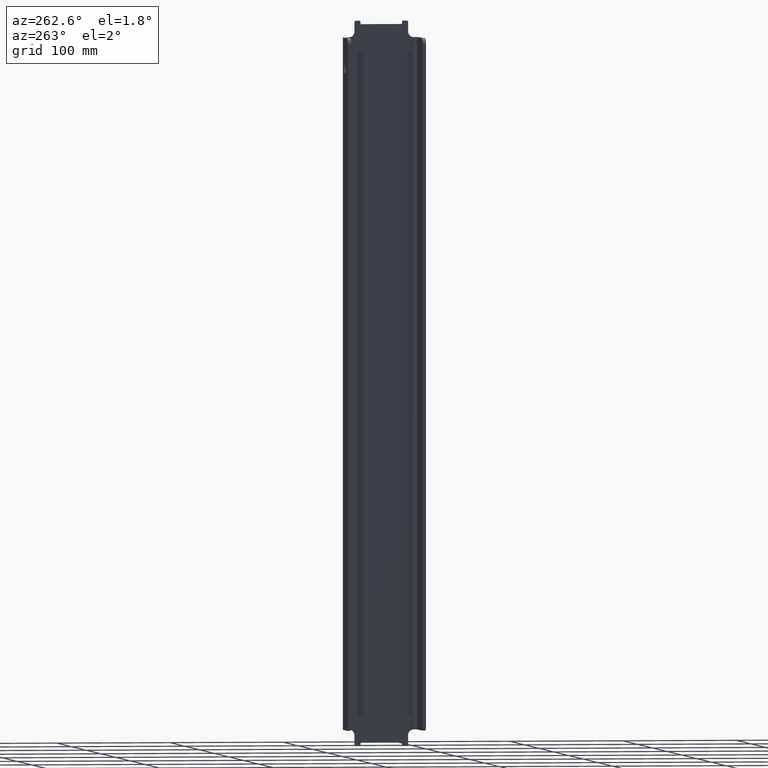
[diagram: clean part render]
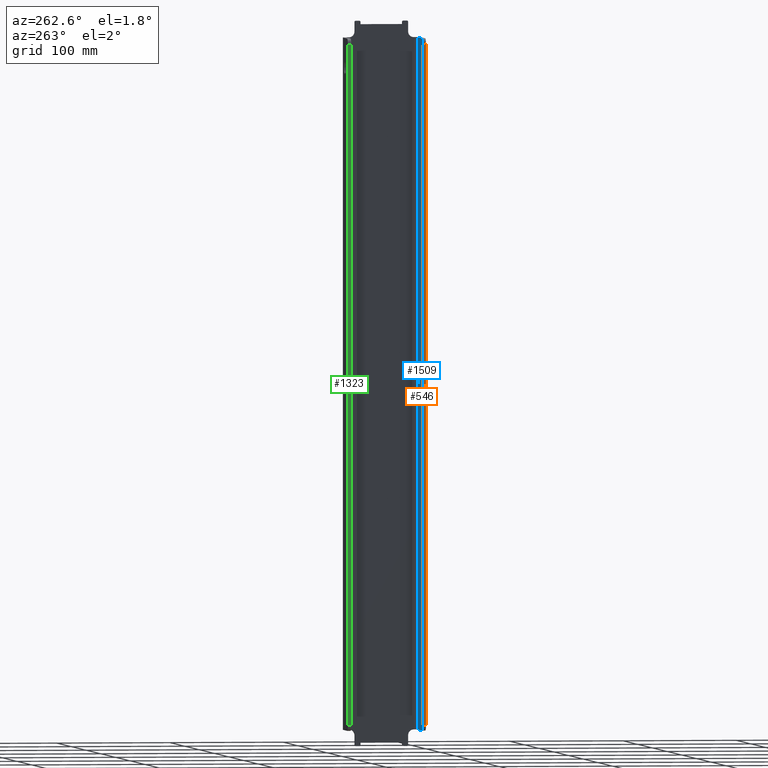
[diagram: same view with three faces highlighted in distinct colors, each labeled with its STEP entity id]
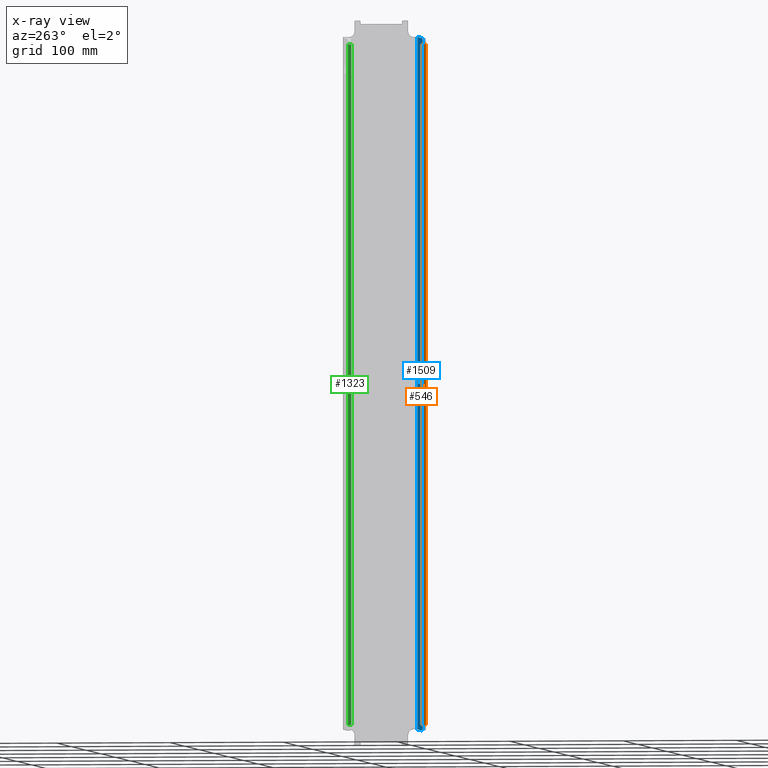
[diagram: x-ray of the same camera — body ghosted, the three highlighted faces saturated]
A machine part, auxiliary view with three faces highlighted in distinct colors.
The next image is the same camera in x-ray (body ghosted, the three faces saturated) — at least one of them is partly hidden behind the body in this view.
Their STEP definitions:

[orange] entity #546 — the highlighted planar face has unit normal (-1, 0, 0).
#24 = EDGE_CURVE ( 'NONE', #1079, #1404, #947, .T. ) ;
#129 = VECTOR ( 'NONE', #791, 1000.000000000000000 ) ;
#152 = ORIENTED_EDGE ( 'NONE', *, *, #1211, .T. ) ;
#165 = CARTESIAN_POINT ( 'NONE',  ( -560.0000000000002274, -1163.305262667904117, 644.5000000000000000 ) ) ;
#220 = EDGE_LOOP ( 'NONE', ( #429, #1457, #152, #360 ) ) ;
#287 = CARTESIAN_POINT ( 'NONE',  ( -560.0000000000002274, -1163.305262667904117, 1340.255877526362156 ) ) ;
#319 = DIRECTION ( 'NONE',  ( -0.000000000000000000, -0.000000000000000000, -1.000000000000000000 ) ) ;
#360 = ORIENTED_EDGE ( 'NONE', *, *, #493, .T. ) ;
#429 = ORIENTED_EDGE ( 'NONE', *, *, #24, .F. ) ;
#437 = CARTESIAN_POINT ( 'NONE',  ( -560.0000000000002274, -1163.305262667904117, 1340.255877526362156 ) ) ;
#454 = DIRECTION ( 'NONE',  ( -0.000000000000000000, -0.000000000000000000, -1.000000000000000000 ) ) ;
#475 = VERTEX_POINT ( 'NONE', #917 ) ;
#493 = EDGE_CURVE ( 'NONE', #475, #1404, #934, .T. ) ;
#495 = CARTESIAN_POINT ( 'NONE',  ( -560.0000000000002274, -1166.305262667904117, 644.5000000000000000 ) ) ;
#533 = DIRECTION ( 'NONE',  ( 0.000000000000000000, 0.000000000000000000, 1.000000000000000000 ) ) ;
#546 = ADVANCED_FACE ( 'NONE', ( #1078 ), #1585, .T. ) ;
#791 = DIRECTION ( 'NONE',  ( 0.000000000000000000, 1.000000000000000000, -0.000000000000000000 ) ) ;
#905 = EDGE_CURVE ( 'NONE', #1192, #1079, #1464, .T. ) ;
#917 = CARTESIAN_POINT ( 'NONE',  ( -560.0000000000002274, -1163.305262667904117, 1241.000000000000455 ) ) ;
#934 = LINE ( 'NONE', #287, #977 ) ;
#943 = DIRECTION ( 'NONE',  ( -1.000000000000000000, 0.000000000000000000, 0.000000000000000000 ) ) ;
#947 = LINE ( 'NONE', #165, #129 ) ;
#955 = DIRECTION ( 'NONE',  ( 0.000000000000000000, 1.000000000000000000, -0.000000000000000000 ) ) ;
#977 = VECTOR ( 'NONE', #319, 1000.000000000000000 ) ;
#1028 = CARTESIAN_POINT ( 'NONE',  ( -560.0000000000002274, -1163.305262667904117, 644.5000000000000000 ) ) ;
#1078 = FACE_OUTER_BOUND ( 'NONE', #220, .T. ) ;
#1079 = VERTEX_POINT ( 'NONE', #495 ) ;
#1092 = VECTOR ( 'NONE', #454, 1000.000000000000000 ) ;
#1118 = CARTESIAN_POINT ( 'NONE',  ( -560.0000000000002274, -1166.305262667904117, 1340.255877526362156 ) ) ;
#1192 = VERTEX_POINT ( 'NONE', #1559 ) ;
#1203 = AXIS2_PLACEMENT_3D ( 'NONE', #437, #943, #533 ) ;
#1211 = EDGE_CURVE ( 'NONE', #1192, #475, #1297, .T. ) ;
#1297 = LINE ( 'NONE', #1436, #1463 ) ;
#1404 = VERTEX_POINT ( 'NONE', #1028 ) ;
#1436 = CARTESIAN_POINT ( 'NONE',  ( -560.0000000000002274, -1163.305262667904117, 1241.000000000000455 ) ) ;
#1457 = ORIENTED_EDGE ( 'NONE', *, *, #905, .F. ) ;
#1463 = VECTOR ( 'NONE', #955, 1000.000000000000000 ) ;
#1464 = LINE ( 'NONE', #1118, #1092 ) ;
#1559 = CARTESIAN_POINT ( 'NONE',  ( -560.0000000000002274, -1166.305262667904117, 1241.000000000000455 ) ) ;
#1585 = PLANE ( 'NONE',  #1203 ) ;

[blue] entity #1509 — the highlighted planar face has unit normal (0, 1, -0).
#17 = EDGE_LOOP ( 'NONE', ( #575, #1051, #1487, #370, #61, #1329 ) ) ;
#61 = ORIENTED_EDGE ( 'NONE', *, *, #1327, .F. ) ;
#110 = CARTESIAN_POINT ( 'NONE',  ( -555.0000000000001137, -1163.305262667904117, 1246.000000000000455 ) ) ;
#142 = VERTEX_POINT ( 'NONE', #110 ) ;
#149 = AXIS2_PLACEMENT_3D ( 'NONE', #1252, #985, #1019 ) ;
#184 = CARTESIAN_POINT ( 'NONE',  ( 1090.972523324353915, -1163.305262667904117, 1246.000000000000455 ) ) ;
#218 = LINE ( 'NONE', #356, #412 ) ;
#287 = CARTESIAN_POINT ( 'NONE',  ( -560.0000000000002274, -1163.305262667904117, 1340.255877526362156 ) ) ;
#305 = PLANE ( 'NONE',  #1054 ) ;
#319 = DIRECTION ( 'NONE',  ( -0.000000000000000000, -0.000000000000000000, -1.000000000000000000 ) ) ;
#330 = CARTESIAN_POINT ( 'NONE',  ( -555.0000000000002274, -1163.305262667904117, 644.5000000000000000 ) ) ;
#336 = VECTOR ( 'NONE', #1331, 1000.000000000000000 ) ;
#347 = CIRCLE ( 'NONE', #373, 5.000000000000004441 ) ;
#356 = CARTESIAN_POINT ( 'NONE',  ( 1090.972523324353915, -1163.305262667904117, 639.5000000000000000 ) ) ;
#370 = ORIENTED_EDGE ( 'NONE', *, *, #915, .F. ) ;
#373 = AXIS2_PLACEMENT_3D ( 'NONE', #330, #693, #1606 ) ;
#390 = VERTEX_POINT ( 'NONE', #893 ) ;
#401 = CARTESIAN_POINT ( 'NONE',  ( -526.0000000000004547, -1163.305262667903889, 1246.000000000000455 ) ) ;
#412 = VECTOR ( 'NONE', #1643, 1000.000000000000000 ) ;
#432 = DIRECTION ( 'NONE',  ( 0.000000000000000000, 1.000000000000000000, -0.000000000000000000 ) ) ;
#475 = VERTEX_POINT ( 'NONE', #917 ) ;
#493 = EDGE_CURVE ( 'NONE', #475, #1404, #934, .T. ) ;
#559 = VECTOR ( 'NONE', #1593, 1000.000000000000000 ) ;
#570 = LINE ( 'NONE', #687, #559 ) ;
#575 = ORIENTED_EDGE ( 'NONE', *, *, #493, .F. ) ;
#687 = CARTESIAN_POINT ( 'NONE',  ( -526.0000000000004547, -1163.305262667904117, 1340.255877526362156 ) ) ;
#689 = LINE ( 'NONE', #184, #336 ) ;
#693 = DIRECTION ( 'NONE',  ( 0.000000000000000000, 1.000000000000000000, -0.000000000000000000 ) ) ;
#698 = VERTEX_POINT ( 'NONE', #1656 ) ;
#816 = CARTESIAN_POINT ( 'NONE',  ( 1090.972523324353915, -1163.305262667904117, 1340.255877526362156 ) ) ;
#882 = EDGE_CURVE ( 'NONE', #390, #1404, #347, .T. ) ;
#893 = CARTESIAN_POINT ( 'NONE',  ( -555.0000000000001137, -1163.305262667904117, 639.5000000000000000 ) ) ;
#915 = EDGE_CURVE ( 'NONE', #698, #1432, #570, .T. ) ;
#917 = CARTESIAN_POINT ( 'NONE',  ( -560.0000000000002274, -1163.305262667904117, 1241.000000000000455 ) ) ;
#934 = LINE ( 'NONE', #287, #977 ) ;
#977 = VECTOR ( 'NONE', #319, 1000.000000000000000 ) ;
#985 = DIRECTION ( 'NONE',  ( 0.000000000000000000, 1.000000000000000000, -0.000000000000000000 ) ) ;
#1019 = DIRECTION ( 'NONE',  ( 0.000000000000000000, 0.000000000000000000, 1.000000000000000000 ) ) ;
#1028 = CARTESIAN_POINT ( 'NONE',  ( -560.0000000000002274, -1163.305262667904117, 644.5000000000000000 ) ) ;
#1051 = ORIENTED_EDGE ( 'NONE', *, *, #1077, .T. ) ;
#1054 = AXIS2_PLACEMENT_3D ( 'NONE', #816, #432, #1586 ) ;
#1077 = EDGE_CURVE ( 'NONE', #475, #142, #1351, .T. ) ;
#1252 = CARTESIAN_POINT ( 'NONE',  ( -555.0000000000002274, -1163.305262667904117, 1241.000000000000455 ) ) ;
#1327 = EDGE_CURVE ( 'NONE', #390, #698, #218, .T. ) ;
#1329 = ORIENTED_EDGE ( 'NONE', *, *, #882, .T. ) ;
#1331 = DIRECTION ( 'NONE',  ( -1.000000000000000000, 0.000000000000000000, 0.000000000000000000 ) ) ;
#1351 = CIRCLE ( 'NONE', #149, 4.999999999999893419 ) ;
#1404 = VERTEX_POINT ( 'NONE', #1028 ) ;
#1432 = VERTEX_POINT ( 'NONE', #401 ) ;
#1450 = FACE_OUTER_BOUND ( 'NONE', #17, .T. ) ;
#1487 = ORIENTED_EDGE ( 'NONE', *, *, #1488, .F. ) ;
#1488 = EDGE_CURVE ( 'NONE', #1432, #142, #689, .T. ) ;
#1509 = ADVANCED_FACE ( 'NONE', ( #1450 ), #305, .T. ) ;
#1586 = DIRECTION ( 'NONE',  ( 0.000000000000000000, 0.000000000000000000, 1.000000000000000000 ) ) ;
#1593 = DIRECTION ( 'NONE',  ( 0.000000000000000000, 0.000000000000000000, 1.000000000000000000 ) ) ;
#1606 = DIRECTION ( 'NONE',  ( 0.000000000000000000, 0.000000000000000000, 1.000000000000000000 ) ) ;
#1643 = DIRECTION ( 'NONE',  ( 1.000000000000000000, -0.000000000000000000, 0.000000000000000000 ) ) ;
#1656 = CARTESIAN_POINT ( 'NONE',  ( -526.0000000000004547, -1163.305262667904117, 639.5000000000000000 ) ) ;

[green] entity #1323 — the highlighted planar face has unit normal (-1, 0, 0).
#12 = DIRECTION ( 'NONE',  ( -0.000000000000000000, -0.000000000000000000, -1.000000000000000000 ) ) ;
#87 = DIRECTION ( 'NONE',  ( -1.000000000000000000, 5.551115123125794535E-15, 0.000000000000000000 ) ) ;
#89 = EDGE_LOOP ( 'NONE', ( #1070, #1324, #1469, #272 ) ) ;
#114 = CARTESIAN_POINT ( 'NONE',  ( -560.0000000000002274, -1097.305262667903889, 1241.000000000000455 ) ) ;
#130 = VECTOR ( 'NONE', #12, 1000.000000000000000 ) ;
#228 = EDGE_CURVE ( 'NONE', #606, #671, #954, .T. ) ;
#235 = DIRECTION ( 'NONE',  ( 0.000000000000000000, 0.000000000000000000, 1.000000000000000000 ) ) ;
#265 = VECTOR ( 'NONE', #1476, 1000.000000000000000 ) ;
#272 = ORIENTED_EDGE ( 'NONE', *, *, #228, .F. ) ;
#326 = CARTESIAN_POINT ( 'NONE',  ( -560.0000000000002274, -1097.305262667903889, 644.5000000000000000 ) ) ;
#359 = CARTESIAN_POINT ( 'NONE',  ( -560.0000000000002274, -1100.305262667903662, 644.5000000000000000 ) ) ;
#363 = FACE_OUTER_BOUND ( 'NONE', #89, .T. ) ;
#367 = LINE ( 'NONE', #738, #466 ) ;
#383 = EDGE_CURVE ( 'NONE', #635, #671, #497, .T. ) ;
#394 = CARTESIAN_POINT ( 'NONE',  ( -560.0000000000002274, -1100.305262667903662, 644.5000000000000000 ) ) ;
#466 = VECTOR ( 'NONE', #1530, 1000.000000000000000 ) ;
#497 = LINE ( 'NONE', #394, #836 ) ;
#581 = CARTESIAN_POINT ( 'NONE',  ( -560.0000000000002274, -1100.305262667903662, 1241.000000000000455 ) ) ;
#606 = VERTEX_POINT ( 'NONE', #581 ) ;
#635 = VERTEX_POINT ( 'NONE', #326 ) ;
#671 = VERTEX_POINT ( 'NONE', #359 ) ;
#718 = EDGE_CURVE ( 'NONE', #778, #635, #1281, .T. ) ;
#738 = CARTESIAN_POINT ( 'NONE',  ( -560.0000000000002274, -1100.305262667903662, 1241.000000000000455 ) ) ;
#778 = VERTEX_POINT ( 'NONE', #114 ) ;
#824 = CARTESIAN_POINT ( 'NONE',  ( -560.0000000000002274, -1100.305262667903662, 1340.255877526362156 ) ) ;
#836 = VECTOR ( 'NONE', #1266, 1000.000000000000000 ) ;
#954 = LINE ( 'NONE', #824, #265 ) ;
#1022 = CARTESIAN_POINT ( 'NONE',  ( -560.0000000000002274, -1097.305262667903889, 1340.255877526362156 ) ) ;
#1069 = EDGE_CURVE ( 'NONE', #778, #606, #367, .T. ) ;
#1070 = ORIENTED_EDGE ( 'NONE', *, *, #1069, .F. ) ;
#1266 = DIRECTION ( 'NONE',  ( -5.551115123125794535E-15, -1.000000000000000000, 0.000000000000000000 ) ) ;
#1281 = LINE ( 'NONE', #1022, #130 ) ;
#1323 = ADVANCED_FACE ( 'NONE', ( #363 ), #1626, .T. ) ;
#1324 = ORIENTED_EDGE ( 'NONE', *, *, #718, .T. ) ;
#1377 = CARTESIAN_POINT ( 'NONE',  ( -560.0000000000002274, -1100.305262667903662, 1340.255877526362156 ) ) ;
#1469 = ORIENTED_EDGE ( 'NONE', *, *, #383, .T. ) ;
#1476 = DIRECTION ( 'NONE',  ( -0.000000000000000000, -0.000000000000000000, -1.000000000000000000 ) ) ;
#1530 = DIRECTION ( 'NONE',  ( -5.551115123125794535E-15, -1.000000000000000000, 0.000000000000000000 ) ) ;
#1626 = PLANE ( 'NONE',  #1645 ) ;
#1645 = AXIS2_PLACEMENT_3D ( 'NONE', #1377, #87, #235 ) ;